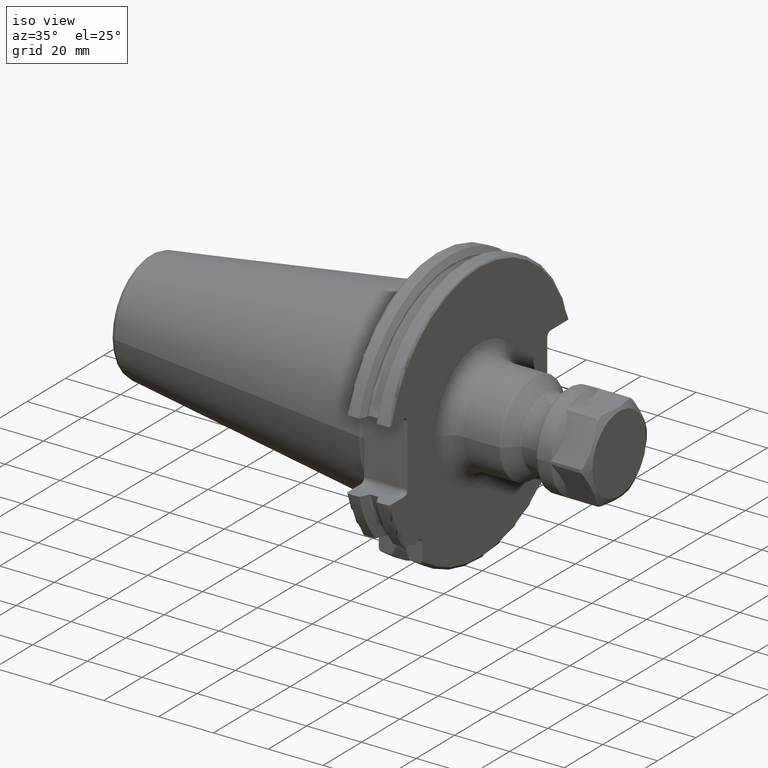
[diagram: clean part render]
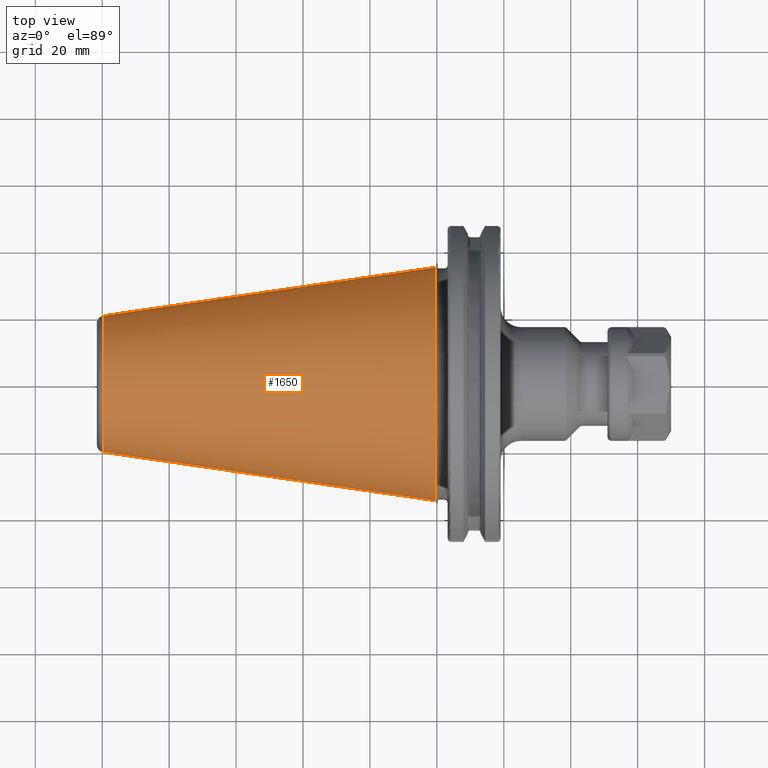
[diagram: tour spotlight — one face highlighted and labeled with its STEP entity id]
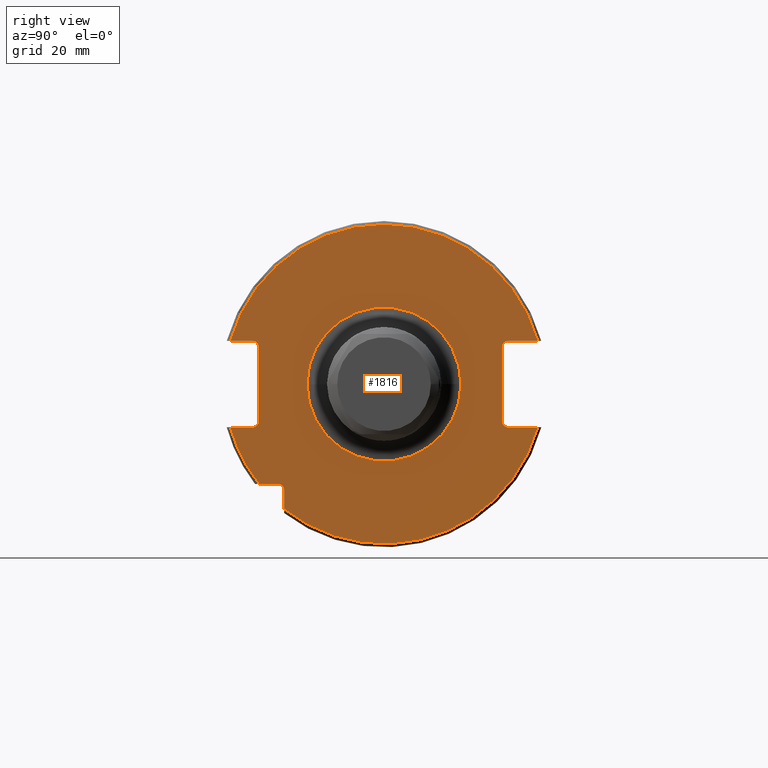
[diagram: tour spotlight — one face highlighted and labeled with its STEP entity id]
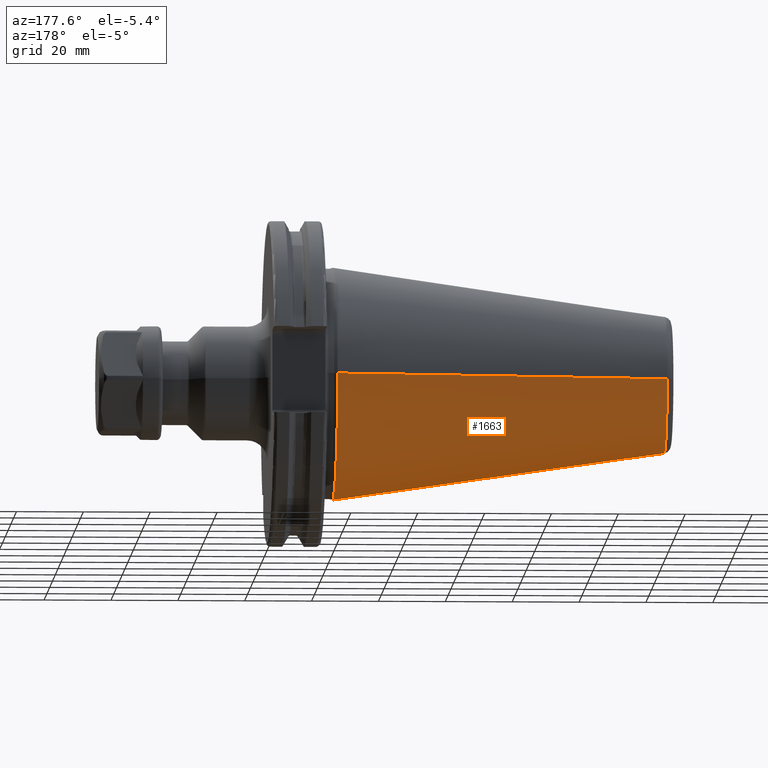
[diagram: tour spotlight — one face highlighted and labeled with its STEP entity id]
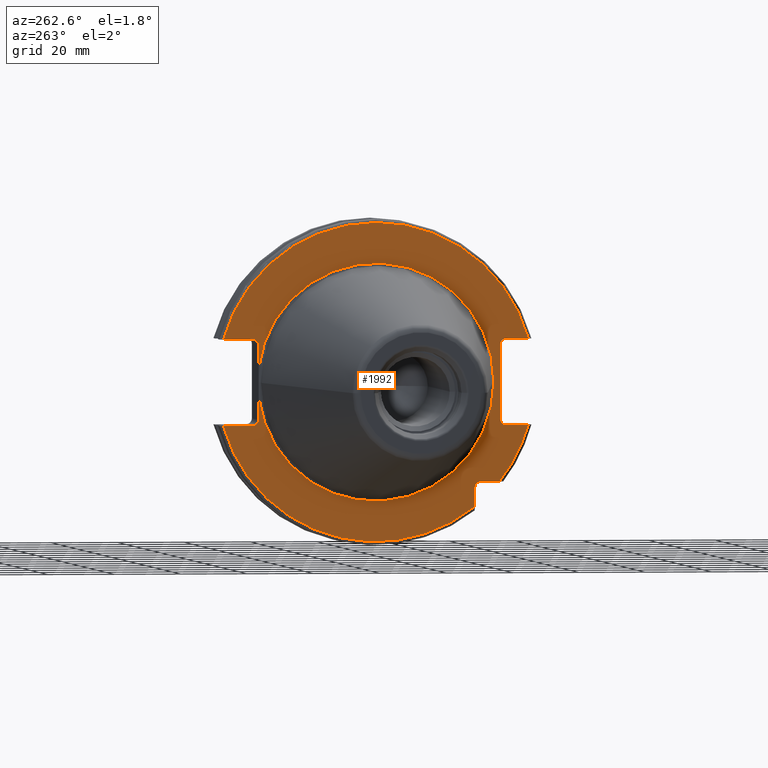
[diagram: tour spotlight — one face highlighted and labeled with its STEP entity id]
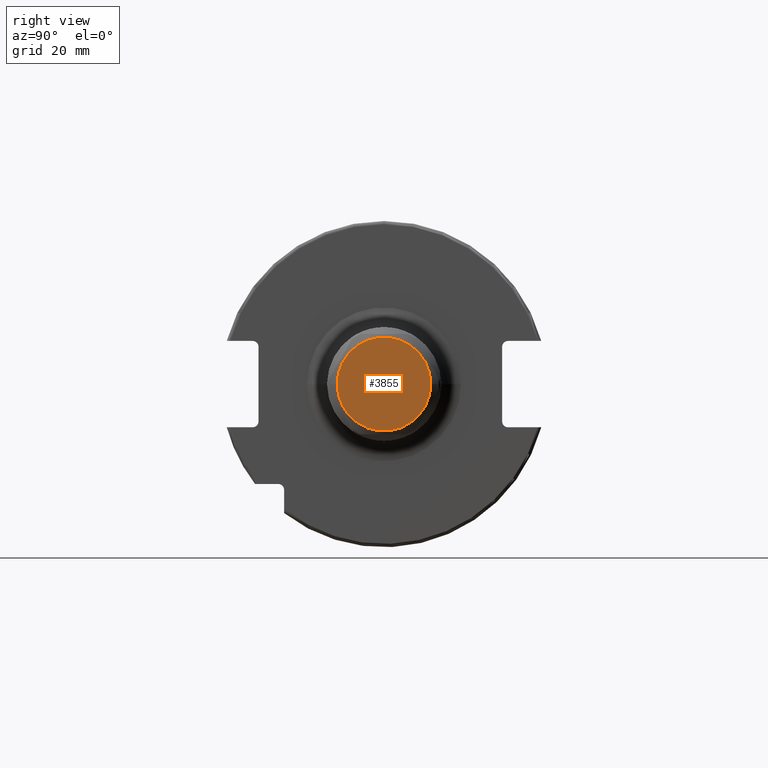
[diagram: tour spotlight — one face highlighted and labeled with its STEP entity id]
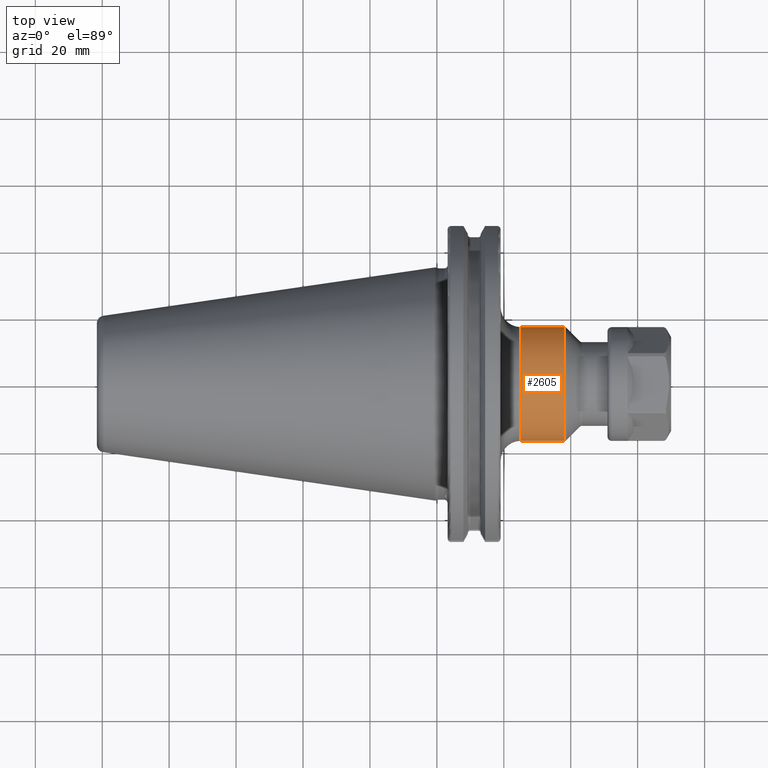
[diagram: tour spotlight — one face highlighted and labeled with its STEP entity id]
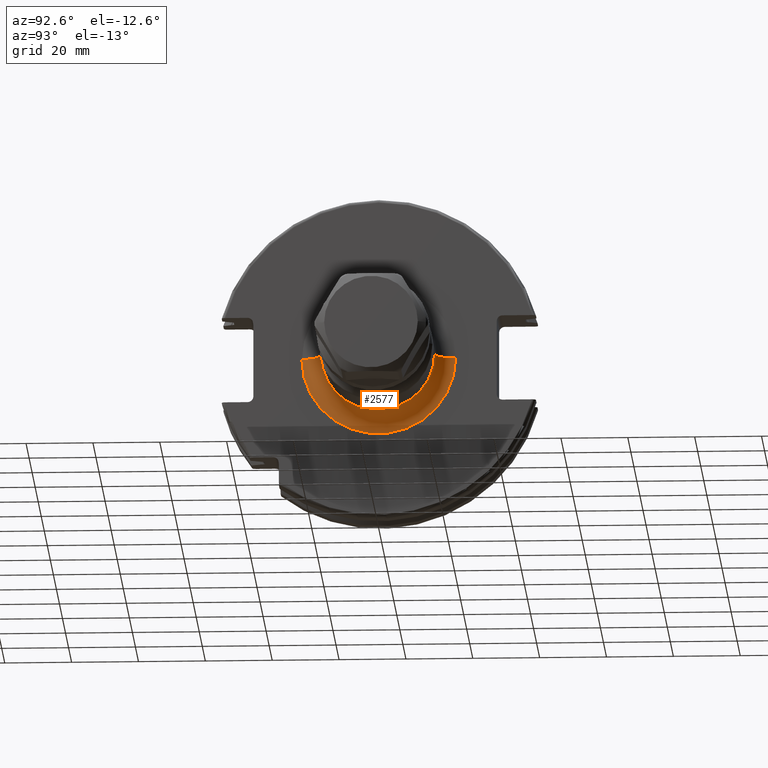
[diagram: tour spotlight — one face highlighted and labeled with its STEP entity id]
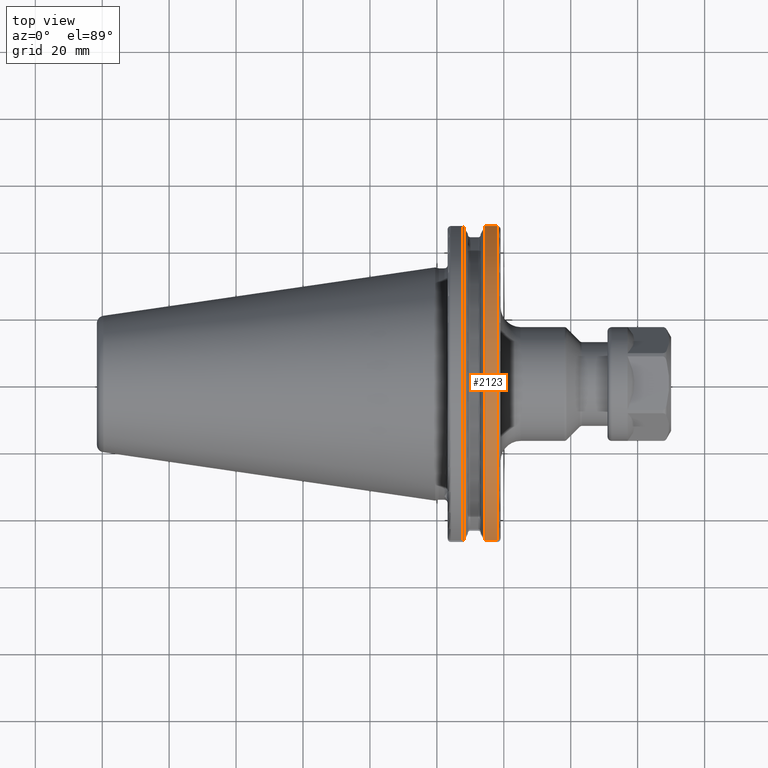
[diagram: tour spotlight — one face highlighted and labeled with its STEP entity id]
A machine part: a face-by-face anatomy tour. The part has 129 B-rep faces; the first image is the clean iso view, then the 8 largest visible faces are spotlighted one at a time (largest first), each with its STEP entity span.

Face 1 — top view, entity #1650. In plain terms, the highlighted conical surface has half-angle 8.298 deg.
Definition (entity closure, byte-faithful):
#37=CARTESIAN_POINT('',(-9.967471700563E1,0.E0,0.E0));
#38=DIRECTION('',(1.E0,0.E0,0.E0));
#39=DIRECTION('',(0.E0,1.E0,0.E0));
#40=AXIS2_PLACEMENT_3D('',#37,#38,#39);
#42=CARTESIAN_POINT('',(-4.896823332305E-1,0.E0,0.E0));
#43=DIRECTION('',(1.E0,0.E0,0.E0));
#44=DIRECTION('',(0.E0,1.E0,0.E0));
#45=AXIS2_PLACEMENT_3D('',#42,#43,#44);
#47=DIRECTION('',(-9.895312636440E-1,-1.443186691705E-1,0.E0));
#48=VECTOR('',#47,1.002343617797E2);
#49=CARTESIAN_POINT('',(-4.896823332305E-1,3.485358204157E1,0.E0));
#50=LINE('',#49,#48);
#51=DIRECTION('',(-9.895312636440E-1,1.443186691705E-1,0.E0));
#52=VECTOR('',#51,1.002343617797E2);
#53=CARTESIAN_POINT('',(-4.896823332305E-1,-3.485358204157E1,0.E0));
#54=LINE('',#53,#52);
#1318=CARTESIAN_POINT('',(-9.967471700563E1,2.038789234437E1,0.E0));
#1320=VERTEX_POINT('',#1318);
#1322=CARTESIAN_POINT('',(-9.967471700563E1,-2.038789234437E1,0.E0));
#1324=VERTEX_POINT('',#1322);
#1386=CARTESIAN_POINT('',(-4.896823332305E-1,3.485358204157E1,0.E0));
#1387=VERTEX_POINT('',#1386);
#1388=CARTESIAN_POINT('',(-4.896823332305E-1,-3.485358204157E1,0.E0));
#1389=VERTEX_POINT('',#1388);
#1636=CARTESIAN_POINT('',(-5.008219966943E1,0.E0,0.E0));
#1637=DIRECTION('',(1.E0,0.E0,0.E0));
#1638=DIRECTION('',(0.E0,-1.E0,0.E0));
#1639=AXIS2_PLACEMENT_3D('',#1636,#1637,#1638);
#1640=CONICAL_SURFACE('',#1639,2.762073719297E1,8.297826828206E0);
#1642=ORIENTED_EDGE('',*,*,#1641,.F.);
#1644=ORIENTED_EDGE('',*,*,#1643,.T.);
#1646=ORIENTED_EDGE('',*,*,#1645,.T.);
#1647=ORIENTED_EDGE('',*,*,#1629,.F.);
#1648=EDGE_LOOP('',(#1642,#1644,#1646,#1647));
#1649=FACE_OUTER_BOUND('',#1648,.F.);
#1650=ADVANCED_FACE('',(#1649),#1640,.T.);
#41=CIRCLE('',#40,2.038789234437E1);
#46=CIRCLE('',#45,3.485358204157E1);
#1629=EDGE_CURVE('',#1320,#1324,#41,.T.);
#1641=EDGE_CURVE('',#1387,#1320,#50,.T.);
#1643=EDGE_CURVE('',#1387,#1389,#46,.T.);
#1645=EDGE_CURVE('',#1389,#1324,#54,.T.);

Face 2 — right view, entity #1816. In plain terms, the highlighted planar face has unit normal (1, 0, 0).
Definition (entity closure, byte-faithful):
#130=CARTESIAN_POINT('',(1.905E1,3.705E1,1.115E1));
#131=DIRECTION('',(-1.E0,0.E0,0.E0));
#132=DIRECTION('',(0.E0,-1.E0,0.E0));
#133=AXIS2_PLACEMENT_3D('',#130,#131,#132);
#140=DIRECTION('',(0.E0,0.E0,1.E0));
#141=VECTOR('',#140,2.23E1);
#142=CARTESIAN_POINT('',(1.905E1,-3.75E1,-1.115E1));
#143=LINE('',#142,#141);
#144=DIRECTION('',(0.E0,1.E0,0.E0));
#145=VECTOR('',#144,6.711493733886E0);
#146=CARTESIAN_POINT('',(1.905E1,-4.596149373389E1,1.29E1));
#147=LINE('',#146,#145);
#148=DIRECTION('',(0.E0,-1.E0,0.E0));
#149=VECTOR('',#148,8.911493733886E0);
#150=CARTESIAN_POINT('',(1.905E1,4.596149373389E1,1.29E1));
#151=LINE('',#150,#149);
#152=DIRECTION('',(0.E0,0.E0,-1.E0));
#153=VECTOR('',#152,2.23E1);
#154=CARTESIAN_POINT('',(1.905E1,3.53E1,1.115E1));
#155=LINE('',#154,#153);
#156=DIRECTION('',(0.E0,-1.E0,0.E0));
#157=VECTOR('',#156,8.911493733886E0);
#158=CARTESIAN_POINT('',(1.905E1,4.596149373389E1,-1.29E1));
#159=LINE('',#158,#157);
#160=DIRECTION('',(0.E0,0.E0,1.E0));
#161=VECTOR('',#160,5.653810627237E0);
#162=CARTESIAN_POINT('',(1.905E1,-2.985E1,-3.725381062724E1));
#163=LINE('',#162,#161);
#164=DIRECTION('',(0.E0,-1.E0,0.E0));
#165=VECTOR('',#164,5.653810627237E0);
#166=CARTESIAN_POINT('',(1.905E1,-3.16E1,-2.985E1));
#167=LINE('',#166,#165);
#168=DIRECTION('',(0.E0,1.E0,0.E0));
#169=VECTOR('',#168,6.711493733886E0);
#170=CARTESIAN_POINT('',(1.905E1,-4.596149373389E1,-1.29E1));
#171=LINE('',#170,#169);
#172=CARTESIAN_POINT('',(1.905E1,0.E0,0.E0));
#173=DIRECTION('',(1.E0,0.E0,0.E0));
#174=DIRECTION('',(0.E0,-1.E0,0.E0));
#175=AXIS2_PLACEMENT_3D('',#172,#173,#174);
#177=CARTESIAN_POINT('',(1.905E1,0.E0,0.E0));
#178=DIRECTION('',(1.E0,0.E0,0.E0));
#179=DIRECTION('',(0.E0,1.E0,0.E0));
#180=AXIS2_PLACEMENT_3D('',#177,#178,#179);
#190=CARTESIAN_POINT('',(1.905E1,-3.925E1,-1.115E1));
#191=DIRECTION('',(-1.E0,0.E0,0.E0));
#192=DIRECTION('',(0.E0,1.E0,0.E0));
#193=AXIS2_PLACEMENT_3D('',#190,#191,#192);
#213=CARTESIAN_POINT('',(1.905E1,4.596149373389E1,-1.29E1));
#225=CARTESIAN_POINT('',(1.905E1,0.E0,0.E0));
#226=DIRECTION('',(-1.E0,0.E0,0.E0));
#227=DIRECTION('',(0.E0,9.627964123359E-1,-2.702278083268E-1));
#228=AXIS2_PLACEMENT_3D('',#225,#226,#227);
#230=CARTESIAN_POINT('',(1.905E1,-4.596149373389E1,-1.29E1));
#241=CARTESIAN_POINT('',(1.905E1,0.E0,0.E0));
#242=DIRECTION('',(-1.E0,0.E0,0.E0));
#243=DIRECTION('',(0.E0,-7.803888060170E-1,-6.252945797329E-1));
#244=AXIS2_PLACEMENT_3D('',#241,#242,#243);
#255=CARTESIAN_POINT('',(1.905E1,-3.725381062724E1,-2.985E1));
#261=CARTESIAN_POINT('',(1.905E1,3.705E1,-1.115E1));
#262=DIRECTION('',(-1.E0,0.E0,0.E0));
#263=DIRECTION('',(0.E0,0.E0,-1.E0));
#264=AXIS2_PLACEMENT_3D('',#261,#262,#263);
#326=CARTESIAN_POINT('',(1.905E1,-3.925E1,1.115E1));
#327=DIRECTION('',(-1.E0,0.E0,0.E0));
#328=DIRECTION('',(0.E0,0.E0,1.E0));
#329=AXIS2_PLACEMENT_3D('',#326,#327,#328);
#367=CARTESIAN_POINT('',(1.905E1,4.596149373389E1,1.29E1));
#378=CARTESIAN_POINT('',(1.905E1,0.E0,0.E0));
#379=DIRECTION('',(1.E0,0.E0,0.E0));
#380=DIRECTION('',(0.E0,9.627964123359E-1,2.702278083268E-1));
#381=AXIS2_PLACEMENT_3D('',#378,#379,#380);
#392=CARTESIAN_POINT('',(1.905E1,-4.596149373389E1,1.29E1));
#741=CARTESIAN_POINT('',(1.905E1,-3.16E1,-3.16E1));
#742=DIRECTION('',(-1.E0,0.E0,0.E0));
#743=DIRECTION('',(0.E0,0.E0,1.E0));
#744=AXIS2_PLACEMENT_3D('',#741,#742,#743);
#1459=VERTEX_POINT('',#367);
#1460=VERTEX_POINT('',#392);
#1463=VERTEX_POINT('',#213);
#1464=VERTEX_POINT('',#230);
#1483=CARTESIAN_POINT('',(1.905E1,-2.985E1,-3.725381062724E1));
#1484=VERTEX_POINT('',#1483);
#1491=CARTESIAN_POINT('',(1.905E1,-3.75E1,-1.115E1));
#1493=VERTEX_POINT('',#1491);
#1495=CARTESIAN_POINT('',(1.905E1,-3.925E1,-1.29E1));
#1497=VERTEX_POINT('',#1495);
#1499=CARTESIAN_POINT('',(1.905E1,-3.925E1,1.29E1));
#1501=VERTEX_POINT('',#1499);
#1503=CARTESIAN_POINT('',(1.905E1,-3.75E1,1.115E1));
#1505=VERTEX_POINT('',#1503);
#1507=CARTESIAN_POINT('',(1.905E1,3.53E1,1.115E1));
#1509=VERTEX_POINT('',#1507);
#1511=CARTESIAN_POINT('',(1.905E1,3.705E1,1.29E1));
#1513=VERTEX_POINT('',#1511);
#1515=CARTESIAN_POINT('',(1.905E1,3.705E1,-1.29E1));
#1517=VERTEX_POINT('',#1515);
#1519=CARTESIAN_POINT('',(1.905E1,3.53E1,-1.115E1));
#1521=VERTEX_POINT('',#1519);
#1523=CARTESIAN_POINT('',(1.905E1,-3.16E1,-2.985E1));
#1524=CARTESIAN_POINT('',(1.905E1,-2.985E1,-3.16E1));
#1525=VERTEX_POINT('',#1523);
#1526=VERTEX_POINT('',#1524);
#1547=CARTESIAN_POINT('',(1.905E1,-2.3E1,0.E0));
#1548=CARTESIAN_POINT('',(1.905E1,2.3E1,0.E0));
#1549=VERTEX_POINT('',#1547);
#1550=VERTEX_POINT('',#1548);
#1588=VERTEX_POINT('',#255);
#1773=CARTESIAN_POINT('',(1.905E1,0.E0,0.E0));
#1774=DIRECTION('',(1.E0,0.E0,0.E0));
#1775=DIRECTION('',(0.E0,-1.E0,0.E0));
#1776=AXIS2_PLACEMENT_3D('',#1773,#1774,#1775);
#1777=PLANE('',#1776);
#1779=ORIENTED_EDGE('',*,*,#1778,.T.);
#1781=ORIENTED_EDGE('',*,*,#1780,.F.);
#1783=ORIENTED_EDGE('',*,*,#1782,.F.);
#1785=ORIENTED_EDGE('',*,*,#1784,.F.);
#1787=ORIENTED_EDGE('',*,*,#1786,.T.);
#1788=ORIENTED_EDGE('',*,*,#1764,.F.);
#1789=ORIENTED_EDGE('',*,*,#1753,.T.);
#1791=ORIENTED_EDGE('',*,*,#1790,.F.);
#1793=ORIENTED_EDGE('',*,*,#1792,.F.);
#1795=ORIENTED_EDGE('',*,*,#1794,.T.);
#1797=ORIENTED_EDGE('',*,*,#1796,.T.);
#1799=ORIENTED_EDGE('',*,*,#1798,.F.);
#1801=ORIENTED_EDGE('',*,*,#1800,.T.);
#1803=ORIENTED_EDGE('',*,*,#1802,.T.);
#1805=ORIENTED_EDGE('',*,*,#1804,.T.);
#1807=ORIENTED_EDGE('',*,*,#1806,.F.);
#1808=EDGE_LOOP('',(#1779,#1781,#1783,#1785,#1787,#1788,#1789,#1791,#1793,#1795,
#1797,#1799,#1801,#1803,#1805,#1807));
#1809=FACE_OUTER_BOUND('',#1808,.F.);
#1811=ORIENTED_EDGE('',*,*,#1810,.T.);
#1813=ORIENTED_EDGE('',*,*,#1812,.T.);
#1814=EDGE_LOOP('',(#1811,#1813));
#1815=FACE_BOUND('',#1814,.F.);
#1816=ADVANCED_FACE('',(#1809,#1815),#1777,.T.);
#134=CIRCLE('',#133,1.75E0);
#176=CIRCLE('',#175,2.3E1);
#181=CIRCLE('',#180,2.3E1);
#194=CIRCLE('',#193,1.75E0);
#229=CIRCLE('',#228,4.77375E1);
#245=CIRCLE('',#244,4.77375E1);
#265=CIRCLE('',#264,1.75E0);
#330=CIRCLE('',#329,1.75E0);
#382=CIRCLE('',#381,4.77375E1);
#745=CIRCLE('',#744,1.75E0);
#1753=EDGE_CURVE('',#1509,#1521,#155,.T.);
#1764=EDGE_CURVE('',#1509,#1513,#134,.T.);
#1778=EDGE_CURVE('',#1493,#1505,#143,.T.);
#1780=EDGE_CURVE('',#1501,#1505,#330,.T.);
#1782=EDGE_CURVE('',#1460,#1501,#147,.T.);
#1784=EDGE_CURVE('',#1459,#1460,#382,.T.);
#1786=EDGE_CURVE('',#1459,#1513,#151,.T.);
#1790=EDGE_CURVE('',#1517,#1521,#265,.T.);
#1792=EDGE_CURVE('',#1463,#1517,#159,.T.);
#1794=EDGE_CURVE('',#1463,#1484,#229,.T.);
#1796=EDGE_CURVE('',#1484,#1526,#163,.T.);
#1798=EDGE_CURVE('',#1525,#1526,#745,.T.);
#1800=EDGE_CURVE('',#1525,#1588,#167,.T.);
#1802=EDGE_CURVE('',#1588,#1464,#245,.T.);
#1804=EDGE_CURVE('',#1464,#1497,#171,.T.);
#1806=EDGE_CURVE('',#1493,#1497,#194,.T.);
#1810=EDGE_CURVE('',#1549,#1550,#176,.T.);
#1812=EDGE_CURVE('',#1550,#1549,#181,.T.);

Face 3 — auxiliary view, entity #1663. In plain terms, the highlighted conical surface has half-angle 8.298 deg.
Definition (entity closure, byte-faithful):
#32=CARTESIAN_POINT('',(-9.967471700563E1,0.E0,0.E0));
#33=DIRECTION('',(-1.E0,0.E0,0.E0));
#34=DIRECTION('',(0.E0,1.E0,0.E0));
#35=AXIS2_PLACEMENT_3D('',#32,#33,#34);
#47=DIRECTION('',(-9.895312636440E-1,-1.443186691705E-1,0.E0));
#48=VECTOR('',#47,1.002343617797E2);
#49=CARTESIAN_POINT('',(-4.896823332305E-1,3.485358204157E1,0.E0));
#50=LINE('',#49,#48);
#51=DIRECTION('',(-9.895312636440E-1,1.443186691705E-1,0.E0));
#52=VECTOR('',#51,1.002343617797E2);
#53=CARTESIAN_POINT('',(-4.896823332305E-1,-3.485358204157E1,0.E0));
#54=LINE('',#53,#52);
#55=CARTESIAN_POINT('',(-4.896823332305E-1,0.E0,0.E0));
#56=DIRECTION('',(-1.E0,0.E0,0.E0));
#57=DIRECTION('',(0.E0,1.E0,0.E0));
#58=AXIS2_PLACEMENT_3D('',#55,#56,#57);
#1318=CARTESIAN_POINT('',(-9.967471700563E1,2.038789234437E1,0.E0));
#1320=VERTEX_POINT('',#1318);
#1322=CARTESIAN_POINT('',(-9.967471700563E1,-2.038789234437E1,0.E0));
#1324=VERTEX_POINT('',#1322);
#1386=CARTESIAN_POINT('',(-4.896823332305E-1,3.485358204157E1,0.E0));
#1387=VERTEX_POINT('',#1386);
#1388=CARTESIAN_POINT('',(-4.896823332305E-1,-3.485358204157E1,0.E0));
#1389=VERTEX_POINT('',#1388);
#1651=CARTESIAN_POINT('',(-5.008219966943E1,0.E0,0.E0));
#1652=DIRECTION('',(1.E0,0.E0,0.E0));
#1653=DIRECTION('',(0.E0,-1.E0,0.E0));
#1654=AXIS2_PLACEMENT_3D('',#1651,#1652,#1653);
#1655=CONICAL_SURFACE('',#1654,2.762073719297E1,8.297826828206E0);
#1656=ORIENTED_EDGE('',*,*,#1641,.T.);
#1657=ORIENTED_EDGE('',*,*,#1618,.T.);
#1658=ORIENTED_EDGE('',*,*,#1645,.F.);
#1660=ORIENTED_EDGE('',*,*,#1659,.F.);
#1661=EDGE_LOOP('',(#1656,#1657,#1658,#1660));
#1662=FACE_OUTER_BOUND('',#1661,.F.);
#1663=ADVANCED_FACE('',(#1662),#1655,.T.);
#36=CIRCLE('',#35,2.038789234437E1);
#59=CIRCLE('',#58,3.485358204157E1);
#1618=EDGE_CURVE('',#1320,#1324,#36,.T.);
#1641=EDGE_CURVE('',#1387,#1320,#50,.T.);
#1645=EDGE_CURVE('',#1389,#1324,#54,.T.);
#1659=EDGE_CURVE('',#1387,#1389,#59,.T.);

Face 4 — auxiliary view, entity #1992. In plain terms, the highlighted planar face has unit normal (1, 0, 0).
Definition (entity closure, byte-faithful):
#105=CARTESIAN_POINT('',(3.2E0,3.53E1,-4.414818795828E0));
#117=CARTESIAN_POINT('',(3.2E0,0.E0,0.E0));
#118=DIRECTION('',(-1.E0,0.E0,0.E0));
#119=DIRECTION('',(0.E0,9.922698524245E-1,-1.240989120402E-1));
#120=AXIS2_PLACEMENT_3D('',#117,#118,#119);
#135=CARTESIAN_POINT('',(3.2E0,3.705E1,1.115E1));
#136=DIRECTION('',(1.E0,0.E0,0.E0));
#137=DIRECTION('',(0.E0,0.E0,1.E0));
#138=AXIS2_PLACEMENT_3D('',#135,#136,#137);
#195=CARTESIAN_POINT('',(3.2E0,-3.925E1,-1.115E1));
#196=DIRECTION('',(1.E0,0.E0,0.E0));
#197=DIRECTION('',(0.E0,0.E0,-1.E0));
#198=AXIS2_PLACEMENT_3D('',#195,#196,#197);
#266=CARTESIAN_POINT('',(3.2E0,3.705E1,-1.115E1));
#267=DIRECTION('',(1.E0,0.E0,0.E0));
#268=DIRECTION('',(0.E0,-1.E0,0.E0));
#269=AXIS2_PLACEMENT_3D('',#266,#267,#268);
#271=DIRECTION('',(0.E0,1.E0,0.E0));
#272=VECTOR('',#271,6.711493733886E0);
#273=CARTESIAN_POINT('',(3.2E0,-4.596149373389E1,1.29E1));
#274=LINE('',#273,#272);
#275=DIRECTION('',(0.E0,0.E0,1.E0));
#276=VECTOR('',#275,2.23E1);
#277=CARTESIAN_POINT('',(3.2E0,-3.75E1,-1.115E1));
#278=LINE('',#277,#276);
#279=DIRECTION('',(0.E0,1.E0,0.E0));
#280=VECTOR('',#279,6.711493733886E0);
#281=CARTESIAN_POINT('',(3.2E0,-4.596149373389E1,-1.29E1));
#282=LINE('',#281,#280);
#283=CARTESIAN_POINT('',(3.2E0,0.E0,0.E0));
#284=DIRECTION('',(-1.E0,0.E0,0.E0));
#285=DIRECTION('',(0.E0,-7.803888060170E-1,-6.252945797329E-1));
#286=AXIS2_PLACEMENT_3D('',#283,#284,#285);
#288=DIRECTION('',(0.E0,-1.E0,0.E0));
#289=VECTOR('',#288,5.653810627237E0);
#290=CARTESIAN_POINT('',(3.2E0,-3.16E1,-2.985E1));
#291=LINE('',#290,#289);
#292=DIRECTION('',(0.E0,0.E0,1.E0));
#293=VECTOR('',#292,5.653810627237E0);
#294=CARTESIAN_POINT('',(3.2E0,-2.985E1,-3.725381062724E1));
#295=LINE('',#294,#293);
#296=CARTESIAN_POINT('',(3.2E0,0.E0,0.E0));
#297=DIRECTION('',(-1.E0,0.E0,0.E0));
#298=DIRECTION('',(0.E0,9.627964123359E-1,-2.702278083268E-1));
#299=AXIS2_PLACEMENT_3D('',#296,#297,#298);
#301=DIRECTION('',(0.E0,-1.E0,0.E0));
#302=VECTOR('',#301,8.911493733886E0);
#303=CARTESIAN_POINT('',(3.2E0,4.596149373389E1,-1.29E1));
#304=LINE('',#303,#302);
#305=DIRECTION('',(0.E0,0.E0,-1.E0));
#306=VECTOR('',#305,6.735181204172E0);
#307=CARTESIAN_POINT('',(3.2E0,3.53E1,-4.414818795828E0));
#308=LINE('',#307,#306);
#309=DIRECTION('',(0.E0,0.E0,-1.E0));
#310=VECTOR('',#309,6.735181204172E0);
#311=CARTESIAN_POINT('',(3.2E0,3.53E1,1.115E1));
#312=LINE('',#311,#310);
#313=DIRECTION('',(0.E0,-1.E0,0.E0));
#314=VECTOR('',#313,8.911493733886E0);
#315=CARTESIAN_POINT('',(3.2E0,4.596149373389E1,1.29E1));
#316=LINE('',#315,#314);
#317=CARTESIAN_POINT('',(3.2E0,0.E0,0.E0));
#318=DIRECTION('',(1.E0,0.E0,0.E0));
#319=DIRECTION('',(0.E0,9.627964123359E-1,2.702278083268E-1));
#320=AXIS2_PLACEMENT_3D('',#317,#318,#319);
#331=CARTESIAN_POINT('',(3.2E0,-3.925E1,1.115E1));
#332=DIRECTION('',(1.E0,0.E0,0.E0));
#333=DIRECTION('',(0.E0,1.E0,0.E0));
#334=AXIS2_PLACEMENT_3D('',#331,#332,#333);
#345=CARTESIAN_POINT('',(3.2E0,4.596149373389E1,1.29E1));
#352=CARTESIAN_POINT('',(3.2E0,-4.596149373389E1,1.29E1));
#746=CARTESIAN_POINT('',(3.2E0,-3.16E1,-3.16E1));
#747=DIRECTION('',(1.E0,0.E0,0.E0));
#748=DIRECTION('',(0.E0,1.E0,0.E0));
#749=AXIS2_PLACEMENT_3D('',#746,#747,#748);
#755=CARTESIAN_POINT('',(3.2E0,4.596149373389E1,-1.29E1));
#790=CARTESIAN_POINT('',(3.2E0,-4.596149373389E1,-1.29E1));
#797=CARTESIAN_POINT('',(3.2E0,-3.725381062724E1,-2.985E1));
#936=CARTESIAN_POINT('',(3.2E0,3.53E1,4.414818795828E0));
#947=CARTESIAN_POINT('',(3.2E0,0.E0,0.E0));
#948=DIRECTION('',(1.E0,0.E0,0.E0));
#949=DIRECTION('',(0.E0,9.922698524245E-1,1.240989120402E-1));
#950=AXIS2_PLACEMENT_3D('',#947,#948,#949);
#1330=CARTESIAN_POINT('',(3.2E0,-3.5575E1,0.E0));
#1332=VERTEX_POINT('',#1330);
#1456=VERTEX_POINT('',#936);
#1458=VERTEX_POINT('',#105);
#1461=VERTEX_POINT('',#345);
#1462=VERTEX_POINT('',#352);
#1465=VERTEX_POINT('',#755);
#1466=VERTEX_POINT('',#790);
#1489=CARTESIAN_POINT('',(3.2E0,-2.985E1,-3.725381062724E1));
#1490=VERTEX_POINT('',#1489);
#1492=CARTESIAN_POINT('',(3.2E0,-3.75E1,-1.115E1));
#1494=VERTEX_POINT('',#1492);
#1496=CARTESIAN_POINT('',(3.2E0,-3.925E1,-1.29E1));
#1498=VERTEX_POINT('',#1496);
#1500=CARTESIAN_POINT('',(3.2E0,-3.925E1,1.29E1));
#1502=VERTEX_POINT('',#1500);
#1504=CARTESIAN_POINT('',(3.2E0,-3.75E1,1.115E1));
#1506=VERTEX_POINT('',#1504);
#1508=CARTESIAN_POINT('',(3.2E0,3.53E1,1.115E1));
#1510=VERTEX_POINT('',#1508);
#1512=CARTESIAN_POINT('',(3.2E0,3.705E1,1.29E1));
#1514=VERTEX_POINT('',#1512);
#1516=CARTESIAN_POINT('',(3.2E0,3.705E1,-1.29E1));
#1518=VERTEX_POINT('',#1516);
#1520=CARTESIAN_POINT('',(3.2E0,3.53E1,-1.115E1));
#1522=VERTEX_POINT('',#1520);
#1527=CARTESIAN_POINT('',(3.2E0,-2.985E1,-3.16E1));
#1528=CARTESIAN_POINT('',(3.2E0,-3.16E1,-2.985E1));
#1529=VERTEX_POINT('',#1527);
#1530=VERTEX_POINT('',#1528);
#1589=VERTEX_POINT('',#797);
#1956=CARTESIAN_POINT('',(3.2E0,0.E0,0.E0));
#1957=DIRECTION('',(1.E0,0.E0,0.E0));
#1958=DIRECTION('',(0.E0,-1.E0,0.E0));
#1959=AXIS2_PLACEMENT_3D('',#1956,#1957,#1958);
#1960=PLANE('',#1959);
#1962=ORIENTED_EDGE('',*,*,#1961,.T.);
#1964=ORIENTED_EDGE('',*,*,#1963,.F.);
#1965=ORIENTED_EDGE('',*,*,#1824,.F.);
#1966=ORIENTED_EDGE('',*,*,#1841,.F.);
#1967=ORIENTED_EDGE('',*,*,#1875,.F.);
#1969=ORIENTED_EDGE('',*,*,#1968,.F.);
#1971=ORIENTED_EDGE('',*,*,#1970,.F.);
#1973=ORIENTED_EDGE('',*,*,#1972,.F.);
#1975=ORIENTED_EDGE('',*,*,#1974,.F.);
#1977=ORIENTED_EDGE('',*,*,#1976,.F.);
#1978=ORIENTED_EDGE('',*,*,#1916,.T.);
#1979=ORIENTED_EDGE('',*,*,#1951,.F.);
#1980=ORIENTED_EDGE('',*,*,#1749,.F.);
#1981=ORIENTED_EDGE('',*,*,#1732,.T.);
#1983=ORIENTED_EDGE('',*,*,#1982,.F.);
#1984=ORIENTED_EDGE('',*,*,#1744,.F.);
#1985=ORIENTED_EDGE('',*,*,#1768,.F.);
#1987=ORIENTED_EDGE('',*,*,#1986,.F.);
#1989=ORIENTED_EDGE('',*,*,#1988,.T.);
#1990=EDGE_LOOP('',(#1962,#1964,#1965,#1966,#1967,#1969,#1971,#1973,#1975,#1977,
#1978,#1979,#1980,#1981,#1983,#1984,#1985,#1987,#1989));
#1991=FACE_OUTER_BOUND('',#1990,.F.);
#1992=ADVANCED_FACE('',(#1991),#1960,.F.);
#121=CIRCLE('',#120,3.5575E1);
#139=CIRCLE('',#138,1.75E0);
#199=CIRCLE('',#198,1.75E0);
#270=CIRCLE('',#269,1.75E0);
#287=CIRCLE('',#286,4.77375E1);
#300=CIRCLE('',#299,4.77375E1);
#321=CIRCLE('',#320,4.77375E1);
#335=CIRCLE('',#334,1.75E0);
#750=CIRCLE('',#749,1.75E0);
#951=CIRCLE('',#950,3.5575E1);
#1732=EDGE_CURVE('',#1458,#1332,#121,.T.);
#1744=EDGE_CURVE('',#1510,#1456,#312,.T.);
#1749=EDGE_CURVE('',#1458,#1522,#308,.T.);
#1768=EDGE_CURVE('',#1514,#1510,#139,.T.);
#1824=EDGE_CURVE('',#1494,#1506,#278,.T.);
#1841=EDGE_CURVE('',#1498,#1494,#199,.T.);
#1875=EDGE_CURVE('',#1466,#1498,#282,.T.);
#1916=EDGE_CURVE('',#1465,#1518,#304,.T.);
#1951=EDGE_CURVE('',#1522,#1518,#270,.T.);
#1961=EDGE_CURVE('',#1462,#1502,#274,.T.);
#1963=EDGE_CURVE('',#1506,#1502,#335,.T.);
#1968=EDGE_CURVE('',#1589,#1466,#287,.T.);
#1970=EDGE_CURVE('',#1530,#1589,#291,.T.);
#1972=EDGE_CURVE('',#1529,#1530,#750,.T.);
#1974=EDGE_CURVE('',#1490,#1529,#295,.T.);
#1976=EDGE_CURVE('',#1465,#1490,#300,.T.);
#1982=EDGE_CURVE('',#1456,#1332,#951,.T.);
#1986=EDGE_CURVE('',#1461,#1514,#316,.T.);
#1988=EDGE_CURVE('',#1461,#1462,#321,.T.);

Face 5 — right view, entity #3855. In plain terms, the highlighted planar face has unit normal (1, 0, 0).
Definition (entity closure, byte-faithful):
#3298=CARTESIAN_POINT('',(1.9E1,0.E0,0.E0));
#3299=DIRECTION('',(-1.E0,0.E0,0.E0));
#3300=DIRECTION('',(0.E0,1.E0,0.E0));
#3301=AXIS2_PLACEMENT_3D('',#3298,#3299,#3300);
#3628=CARTESIAN_POINT('',(1.9E1,0.E0,0.E0));
#3629=DIRECTION('',(1.E0,0.E0,0.E0));
#3630=DIRECTION('',(0.E0,1.E0,0.E0));
#3631=AXIS2_PLACEMENT_3D('',#3628,#3629,#3630);
#3776=CARTESIAN_POINT('',(1.9E1,1.4E1,0.E0));
#3777=CARTESIAN_POINT('',(1.9E1,-1.4E1,0.E0));
#3778=VERTEX_POINT('',#3776);
#3779=VERTEX_POINT('',#3777);
#3844=CARTESIAN_POINT('',(1.9E1,0.E0,0.E0));
#3845=DIRECTION('',(1.E0,0.E0,0.E0));
#3846=DIRECTION('',(0.E0,-1.E0,0.E0));
#3847=AXIS2_PLACEMENT_3D('',#3844,#3845,#3846);
#3848=PLANE('',#3847);
#3850=ORIENTED_EDGE('',*,*,#3849,.T.);
#3852=ORIENTED_EDGE('',*,*,#3851,.F.);
#3853=EDGE_LOOP('',(#3850,#3852));
#3854=FACE_OUTER_BOUND('',#3853,.F.);
#3855=ADVANCED_FACE('',(#3854),#3848,.T.);
#3302=CIRCLE('',#3301,1.4E1);
#3632=CIRCLE('',#3631,1.4E1);
#3849=EDGE_CURVE('',#3778,#3779,#3302,.T.);
#3851=EDGE_CURVE('',#3778,#3779,#3632,.T.);

Face 6 — top view, entity #2605. In plain terms, the highlighted cylindrical surface (partial cylindrical patch) has radius 17 mm, axis along (1, 0, 0).
Definition (entity closure, byte-faithful):
#962=CARTESIAN_POINT('',(3.808578643763E1,0.E0,0.E0));
#963=DIRECTION('',(-1.E0,0.E0,0.E0));
#964=DIRECTION('',(0.E0,-1.E0,0.E0));
#965=AXIS2_PLACEMENT_3D('',#962,#963,#964);
#967=CARTESIAN_POINT('',(2.505E1,0.E0,0.E0));
#968=DIRECTION('',(1.E0,0.E0,0.E0));
#969=DIRECTION('',(0.E0,1.E0,0.E0));
#970=AXIS2_PLACEMENT_3D('',#967,#968,#969);
#987=DIRECTION('',(-1.E0,0.E0,1.431870282770E-13));
#988=VECTOR('',#987,1.303578643763E1);
#989=CARTESIAN_POINT('',(3.808578643763E1,1.7E1,7.689336436552E-13));
#990=LINE('',#989,#988);
#996=DIRECTION('',(-1.E0,0.E0,-1.431885426590E-13));
#997=VECTOR('',#996,1.303578643763E1);
#998=CARTESIAN_POINT('',(3.808578643763E1,-1.7E1,-7.694621329596E-13));
#999=LINE('',#998,#997);
#1551=CARTESIAN_POINT('',(2.505E1,-1.7E1,0.E0));
#1552=CARTESIAN_POINT('',(2.505E1,1.7E1,0.E0));
#1553=VERTEX_POINT('',#1551);
#1554=VERTEX_POINT('',#1552);
#1563=CARTESIAN_POINT('',(3.808578643763E1,1.7E1,0.E0));
#1564=CARTESIAN_POINT('',(3.808578643763E1,-1.7E1,0.E0));
#1565=VERTEX_POINT('',#1563);
#1566=VERTEX_POINT('',#1564);
#2591=CARTESIAN_POINT('',(1.70775E1,0.E0,0.E0));
#2592=DIRECTION('',(1.E0,0.E0,0.E0));
#2593=DIRECTION('',(0.E0,-1.E0,0.E0));
#2594=AXIS2_PLACEMENT_3D('',#2591,#2592,#2593);
#2595=CYLINDRICAL_SURFACE('',#2594,1.7E1);
#2597=ORIENTED_EDGE('',*,*,#2596,.F.);
#2599=ORIENTED_EDGE('',*,*,#2598,.T.);
#2600=ORIENTED_EDGE('',*,*,#2585,.F.);
#2602=ORIENTED_EDGE('',*,*,#2601,.F.);
#2603=EDGE_LOOP('',(#2597,#2599,#2600,#2602));
#2604=FACE_OUTER_BOUND('',#2603,.F.);
#2605=ADVANCED_FACE('',(#2604),#2595,.T.);
#966=CIRCLE('',#965,1.7E1);
#971=CIRCLE('',#970,1.7E1);
#2585=EDGE_CURVE('',#1554,#1553,#971,.T.);
#2596=EDGE_CURVE('',#1566,#1565,#966,.T.);
#2598=EDGE_CURVE('',#1566,#1553,#999,.T.);
#2601=EDGE_CURVE('',#1565,#1554,#990,.T.);

Face 7 — auxiliary view, entity #2577. In plain terms, the highlighted toroidal blend (fillet) surface has major radius 23 mm and minor (blend) radius 6 mm.
Definition (entity closure, byte-faithful):
#172=CARTESIAN_POINT('',(1.905E1,0.E0,0.E0));
#173=DIRECTION('',(1.E0,0.E0,0.E0));
#174=DIRECTION('',(0.E0,-1.E0,0.E0));
#175=AXIS2_PLACEMENT_3D('',#172,#173,#174);
#952=CARTESIAN_POINT('',(2.505E1,-2.3E1,2.843392188367E-12));
#953=DIRECTION('',(0.E0,-1.236250685155E-13,-1.E0));
#954=DIRECTION('',(-1.E0,2.960594732334E-14,0.E0));
#955=AXIS2_PLACEMENT_3D('',#952,#953,#954);
#957=CARTESIAN_POINT('',(2.505E1,2.3E1,-2.845945701324E-12));
#958=DIRECTION('',(0.E0,1.237360908179E-13,1.E0));
#959=DIRECTION('',(-1.E0,-2.960594732334E-14,0.E0));
#960=AXIS2_PLACEMENT_3D('',#957,#958,#959);
#991=CARTESIAN_POINT('',(2.505E1,0.E0,0.E0));
#992=DIRECTION('',(1.E0,0.E0,0.E0));
#993=DIRECTION('',(0.E0,-1.E0,0.E0));
#994=AXIS2_PLACEMENT_3D('',#991,#992,#993);
#1547=CARTESIAN_POINT('',(1.905E1,-2.3E1,0.E0));
#1548=CARTESIAN_POINT('',(1.905E1,2.3E1,0.E0));
#1549=VERTEX_POINT('',#1547);
#1550=VERTEX_POINT('',#1548);
#1551=CARTESIAN_POINT('',(2.505E1,-1.7E1,0.E0));
#1552=CARTESIAN_POINT('',(2.505E1,1.7E1,0.E0));
#1553=VERTEX_POINT('',#1551);
#1554=VERTEX_POINT('',#1552);
#2563=CARTESIAN_POINT('',(2.505E1,0.E0,0.E0));
#2564=DIRECTION('',(1.E0,0.E0,0.E0));
#2565=DIRECTION('',(0.E0,-9.999590926702E-1,9.045053132246E-3));
#2566=AXIS2_PLACEMENT_3D('',#2563,#2564,#2565);
#2567=TOROIDAL_SURFACE('',#2566,2.3E1,6.E0);
#2568=ORIENTED_EDGE('',*,*,#1810,.F.);
#2570=ORIENTED_EDGE('',*,*,#2569,.T.);
#2572=ORIENTED_EDGE('',*,*,#2571,.T.);
#2574=ORIENTED_EDGE('',*,*,#2573,.F.);
#2575=EDGE_LOOP('',(#2568,#2570,#2572,#2574));
#2576=FACE_OUTER_BOUND('',#2575,.F.);
#2577=ADVANCED_FACE('',(#2576),#2567,.F.);
#176=CIRCLE('',#175,2.3E1);
#956=CIRCLE('',#955,6.E0);
#961=CIRCLE('',#960,6.E0);
#995=CIRCLE('',#994,1.7E1);
#1810=EDGE_CURVE('',#1549,#1550,#176,.T.);
#2569=EDGE_CURVE('',#1549,#1553,#956,.T.);
#2571=EDGE_CURVE('',#1553,#1554,#995,.T.);
#2573=EDGE_CURVE('',#1550,#1554,#961,.T.);

Face 8 — top view, entity #2123. In plain terms, the highlighted cylindrical surface (partial cylindrical patch) has radius 48.7375 mm, axis along (1, 0, 0).
Definition (entity closure, byte-faithful):
#407=DIRECTION('',(1.E0,0.E0,0.E0));
#408=VECTOR('',#407,3.634621614173E0);
#409=CARTESIAN_POINT('',(1.441537838583E1,4.699929686974E1,1.29E1));
#410=LINE('',#409,#408);
#411=CARTESIAN_POINT('',(1.805E1,0.E0,0.E0));
#412=DIRECTION('',(1.E0,0.E0,0.E0));
#413=DIRECTION('',(0.E0,9.643354064066E-1,2.646832521159E-1));
#414=AXIS2_PLACEMENT_3D('',#411,#412,#413);
#416=DIRECTION('',(1.E0,0.E0,0.E0));
#417=VECTOR('',#416,3.634621614173E0);
#418=CARTESIAN_POINT('',(1.441537838583E1,-4.699929686974E1,1.29E1));
#419=LINE('',#418,#417);
#420=CARTESIAN_POINT('',(1.441537838583E1,0.E0,0.E0));
#421=DIRECTION('',(1.E0,0.E0,0.E0));
#422=DIRECTION('',(0.E0,9.643354064066E-1,2.646832521159E-1));
#423=AXIS2_PLACEMENT_3D('',#420,#421,#422);
#584=CARTESIAN_POINT('',(1.441537838583E1,4.699929686974E1,1.29E1));
#596=CARTESIAN_POINT('',(1.441537838583E1,-4.699929686974E1,1.29E1));
#1426=VERTEX_POINT('',#584);
#1427=VERTEX_POINT('',#596);
#1442=CARTESIAN_POINT('',(1.805E1,4.699929686974E1,1.29E1));
#1443=VERTEX_POINT('',#1442);
#1446=CARTESIAN_POINT('',(1.805E1,-4.699929686974E1,1.29E1));
#1447=VERTEX_POINT('',#1446);
#2111=CARTESIAN_POINT('',(-1.076325E2,0.E0,0.E0));
#2112=DIRECTION('',(1.E0,0.E0,0.E0));
#2113=DIRECTION('',(0.E0,-1.E0,0.E0));
#2114=AXIS2_PLACEMENT_3D('',#2111,#2112,#2113);
#2115=CYLINDRICAL_SURFACE('',#2114,4.87375E1);
#2116=ORIENTED_EDGE('',*,*,#2062,.T.);
#2117=ORIENTED_EDGE('',*,*,#2093,.T.);
#2118=ORIENTED_EDGE('',*,*,#2019,.F.);
#2120=ORIENTED_EDGE('',*,*,#2119,.F.);
#2121=EDGE_LOOP('',(#2116,#2117,#2118,#2120));
#2122=FACE_OUTER_BOUND('',#2121,.F.);
#2123=ADVANCED_FACE('',(#2122),#2115,.T.);
#415=CIRCLE('',#414,4.87375E1);
#424=CIRCLE('',#423,4.87375E1);
#2019=EDGE_CURVE('',#1427,#1447,#419,.T.);
#2062=EDGE_CURVE('',#1426,#1443,#410,.T.);
#2093=EDGE_CURVE('',#1443,#1447,#415,.T.);
#2119=EDGE_CURVE('',#1426,#1427,#424,.T.);